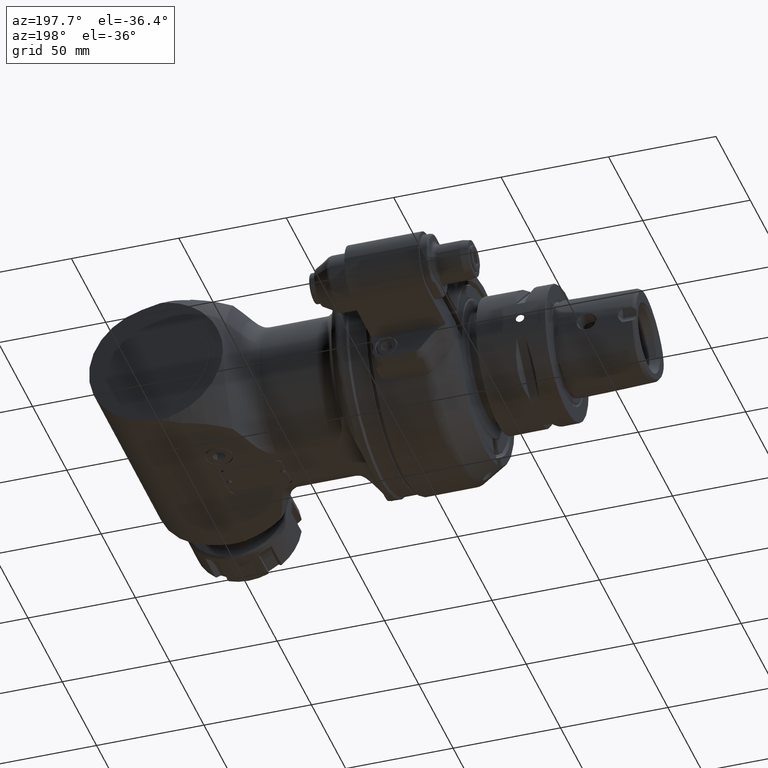
[diagram: clean part render]
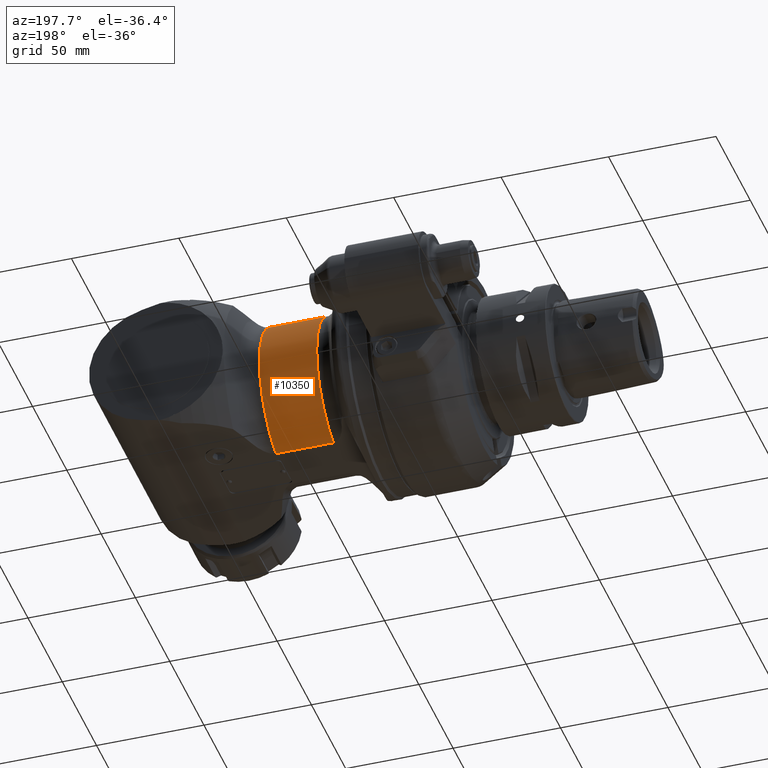
[diagram: same view with one face highlighted and labeled with its STEP entity id]
A machine part, auxiliary view. The second image highlights one B-rep face of the part: STEP entity #10350.
In plain terms, the highlighted cylindrical surface (partial cylindrical patch) has radius 36 mm, axis along (-1, 0, 0).
Its self-contained STEP definition (entity closure, byte-faithful):
#795=LINE('',#14698,#1560);
#809=LINE('',#14959,#1574);
#1560=VECTOR('',#11963,26.67897826015);
#1574=VECTOR('',#12035,26.67897826021);
#2312=CYLINDRICAL_SURFACE('',#11011,36.);
#2449=FACE_OUTER_BOUND('',#3021,.T.);
#3021=EDGE_LOOP('',(#7003,#7004,#7005,#7006));
#3663=CIRCLE('',#11010,36.);
#3664=CIRCLE('',#11012,36.);
#4067=VERTEX_POINT('',#14684);
#4068=VERTEX_POINT('',#14697);
#4128=VERTEX_POINT('',#14947);
#4129=VERTEX_POINT('',#14958);
#5221=EDGE_CURVE('',#4068,#4067,#795,.T.);
#5294=EDGE_CURVE('',#4129,#4128,#809,.T.);
#5316=EDGE_CURVE('',#4129,#4067,#3663,.T.);
#5317=EDGE_CURVE('',#4068,#4128,#3664,.T.);
#7003=ORIENTED_EDGE('',*,*,#5317,.F.);
#7004=ORIENTED_EDGE('',*,*,#5221,.T.);
#7005=ORIENTED_EDGE('',*,*,#5316,.F.);
#7006=ORIENTED_EDGE('',*,*,#5294,.T.);
#10350=ADVANCED_FACE('',(#2449),#2312,.T.);
#11010=AXIS2_PLACEMENT_3D('',#15073,#12064,#12065);
#11011=AXIS2_PLACEMENT_3D('',#15074,#12066,#12067);
#11012=AXIS2_PLACEMENT_3D('',#15075,#12068,#12069);
#11963=DIRECTION('',(-1.,0.,0.));
#12035=DIRECTION('',(1.,0.,0.));
#12064=DIRECTION('center_axis',(-1.,0.,0.));
#12065=DIRECTION('ref_axis',(0.,0.328671099061113,0.944444444444437));
#12066=DIRECTION('center_axis',(-1.,0.,0.));
#12067=DIRECTION('ref_axis',(0.,1.,1.22464679914735E-16));
#12068=DIRECTION('center_axis',(1.,0.,0.));
#12069=DIRECTION('ref_axis',(0.,1.,0.));
#14684=CARTESIAN_POINT('',(207.1879662404,11.8321595662,-34.));
#14697=CARTESIAN_POINT('',(233.8669445005,11.8321595662,-34.));
#14698=CARTESIAN_POINT('',(233.8669445005,11.8321595662,-34.));
#14947=CARTESIAN_POINT('',(233.8669445006,11.8321595662,34.));
#14958=CARTESIAN_POINT('',(207.1879662404,11.8321595662,34.));
#14959=CARTESIAN_POINT('',(207.1879662404,11.8321595662,34.));
#15073=CARTESIAN_POINT('Origin',(207.1879662404,0.,0.));
#15074=CARTESIAN_POINT('Origin',(217.7095440971,0.,0.));
#15075=CARTESIAN_POINT('Origin',(233.8669445005,0.,0.));